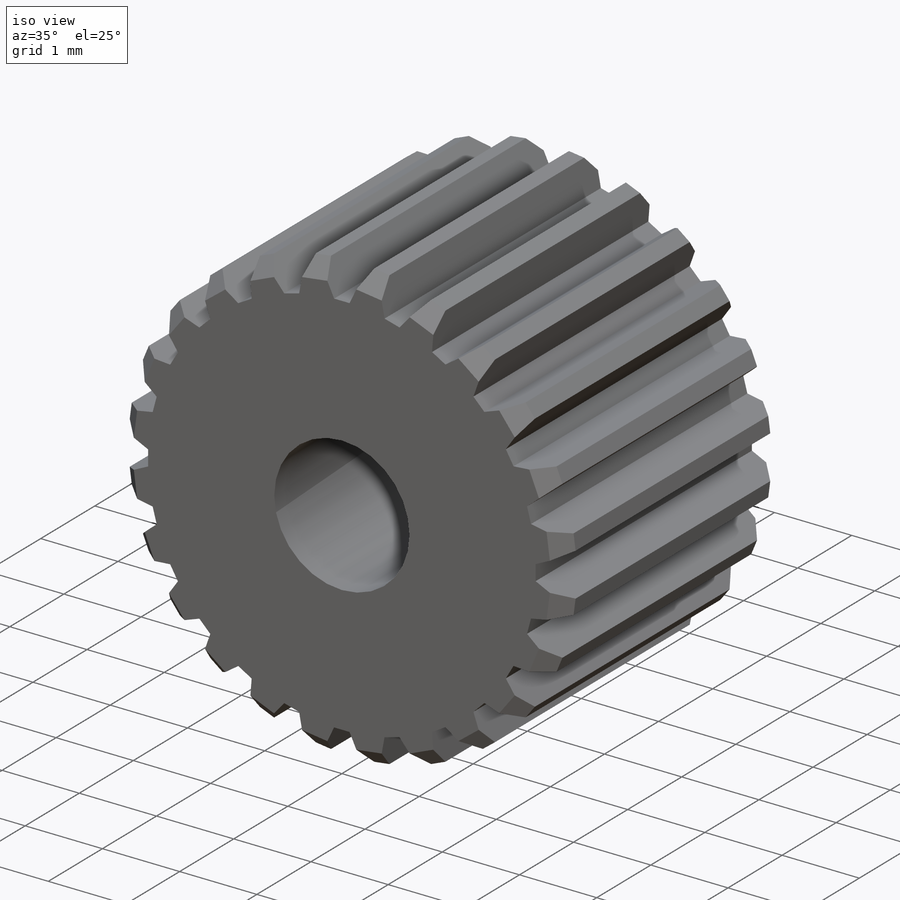
[diagram: iso view]
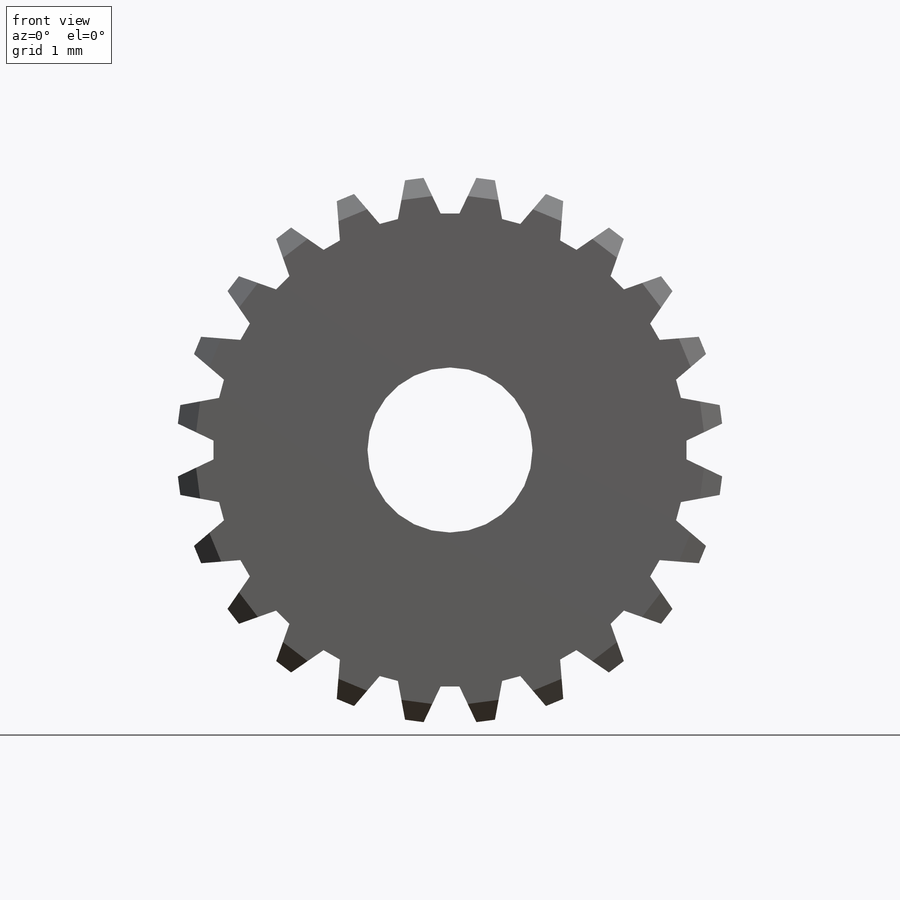
[diagram: front view]
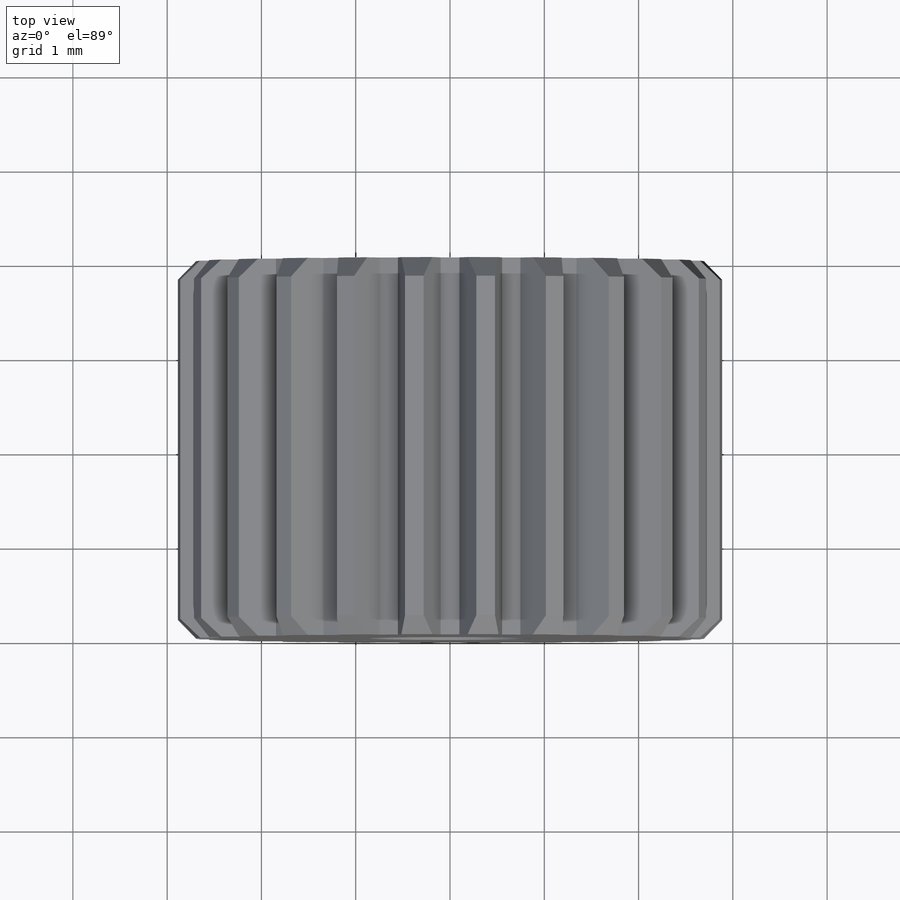
[diagram: top view]
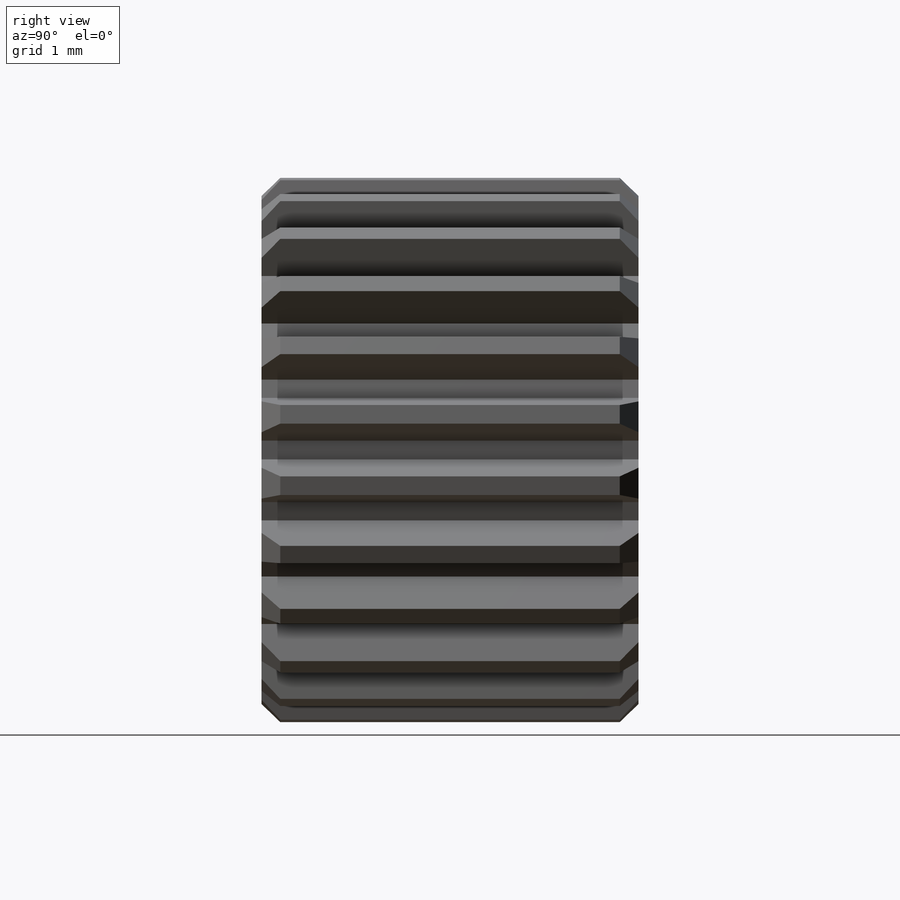
[diagram: right view]
SOLIDWORKS PART (.sldprt)
format: sldprt  version: not decoded by parser v0  size: 672,256 bytes
history: native  units: mm
features: thread x10, sketch x4, plane x3, material x1, extrude x1, chamfer x1, cut_extrude x1, pattern_circular x1, hole x1 (+10 scaffold rows collapsed)
feature tree (33):
  scaffold x10  (default folders/planes/origin — collapsed)
  material  "材质 <未指定>"
  plane  "前视基准面"
  plane  "上视基准面"
  plane  "右视基准面"
  sketch  "草图1"  dims[D1=5.8mm D2=2.2mm]
  extrude  "凸台-拉伸1"  Depth=4mm
  chamfer  "倒角1"  Distance=0.2mm Angle=45deg
  sketch  "草图2"  dims[c1.D1=~0.053036mm c2.D1=90.0deg c3.D1=~0.053036mm c4.D1=90.0deg c5.D1=0.2mm c5.D2=0.6mm c5.D3=~0.419728mm]
  cut_extrude  "切除-拉伸1"  [1 undecoded]
  pattern_circular  "阵列(圆周)1"  Count=30 Angle=15deg
  hole  "M2.2x0.45 螺纹孔2"  [1 undecoded]
  sketch  "3D草图2"
  sketch  "草图4"  dims[hole-wizard template sketch: 46 standard entries collapsed; hole parameters kept: c15.螺纹孔钻头直径=1.75mm c15.螺纹孔钻头深度=5.75mm c15.D3=~14.816244mm c15.导头角度=118.0deg]
  thread  "孔螺蚊线1"  Diameter=4mm  [1 undecoded]
  thread  "孔螺蚊线2"  Diameter=4mm  [1 undecoded]
  thread  "孔螺蚊线3"  Diameter=4mm  [1 undecoded]
  thread  "孔螺蚊线4"  Diameter=4mm  [1 undecoded]
  thread  "孔螺蚊线5"  Diameter=4mm  [1 undecoded]
  thread  "孔螺蚊线6"  Diameter=4mm  [1 undecoded]
  thread  "孔螺蚊线7"  Diameter=4mm  [1 undecoded]
  thread  "孔螺蚊线8"  Diameter=4mm  [1 undecoded]
  thread  "孔螺蚊线9"  Diameter=4mm  [1 undecoded]
  thread  "孔螺蚊线10"  Diameter=4mm  [1 undecoded]
decode coverage: 16 of 19 modeling features carry decoded parameters
note: ~ marks probable driven/reference dimensions
note: 12 parameter values undecoded
note: suppression state not decoded; provenance and decode notes live in map.json
